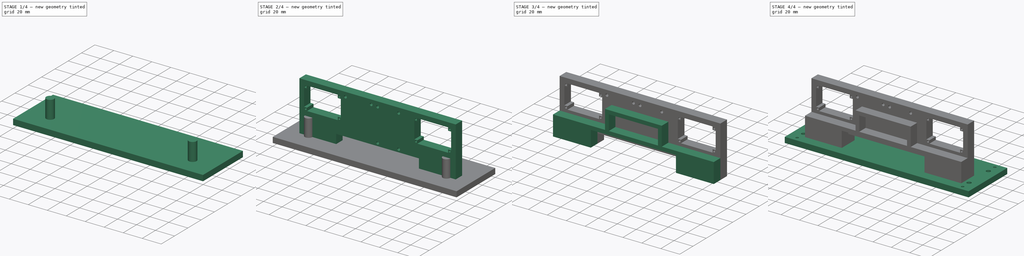
[diagram: build sequence overview — one tinted view per stage of 4, left to right]
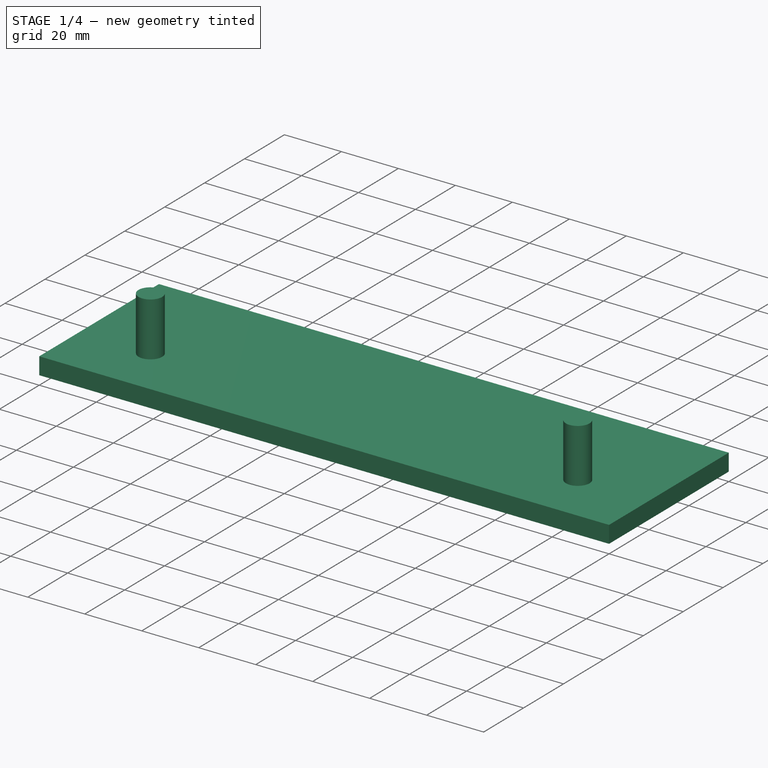
[diagram: stage 1 of 4 — iso view after this stage's code; geometry added in this stage tinted green]
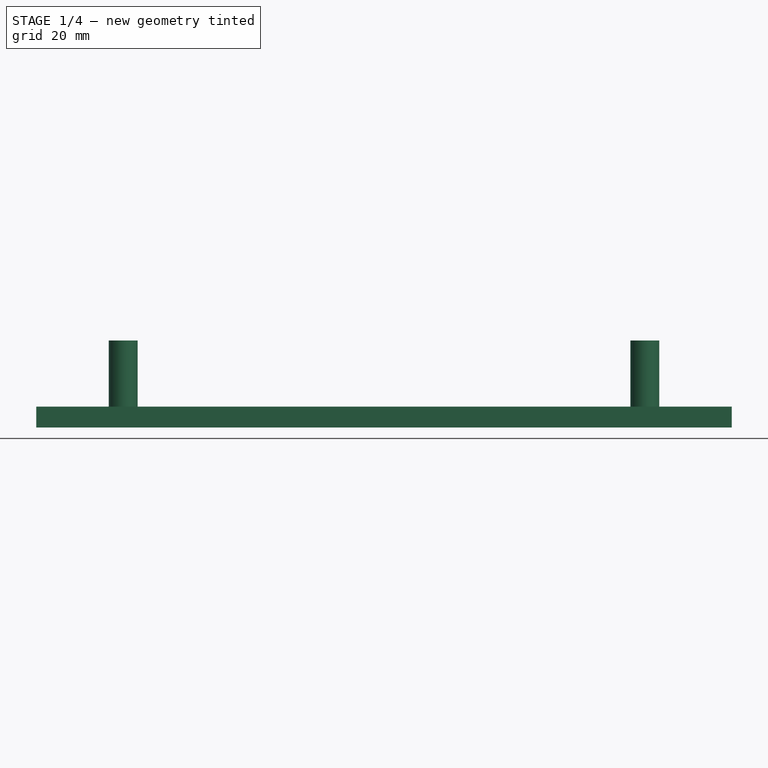
[diagram: stage 1 of 4 — front view after this stage's code; geometry added in this stage tinted green]
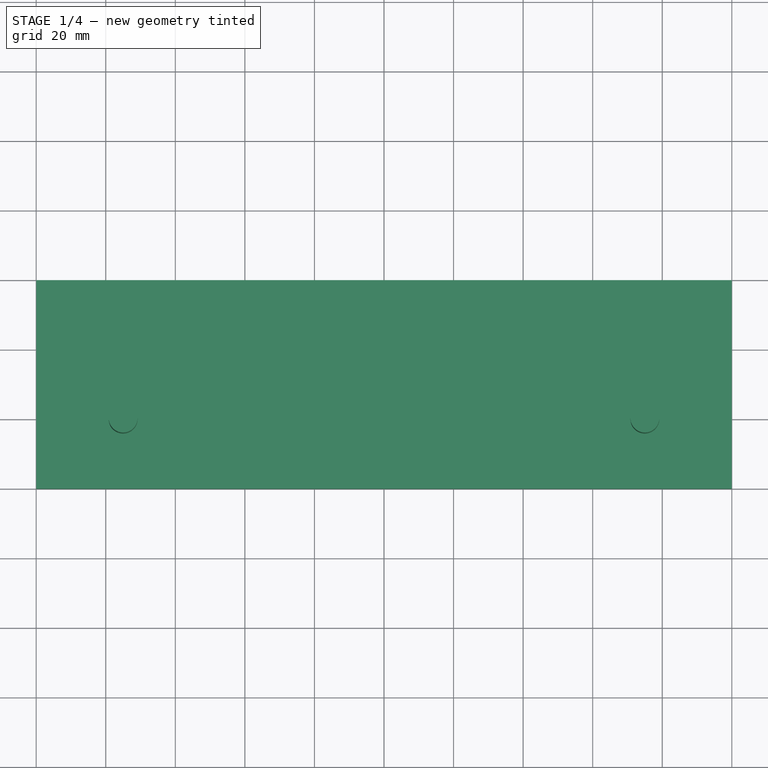
[diagram: stage 1 of 4 — top view after this stage's code; geometry added in this stage tinted green]
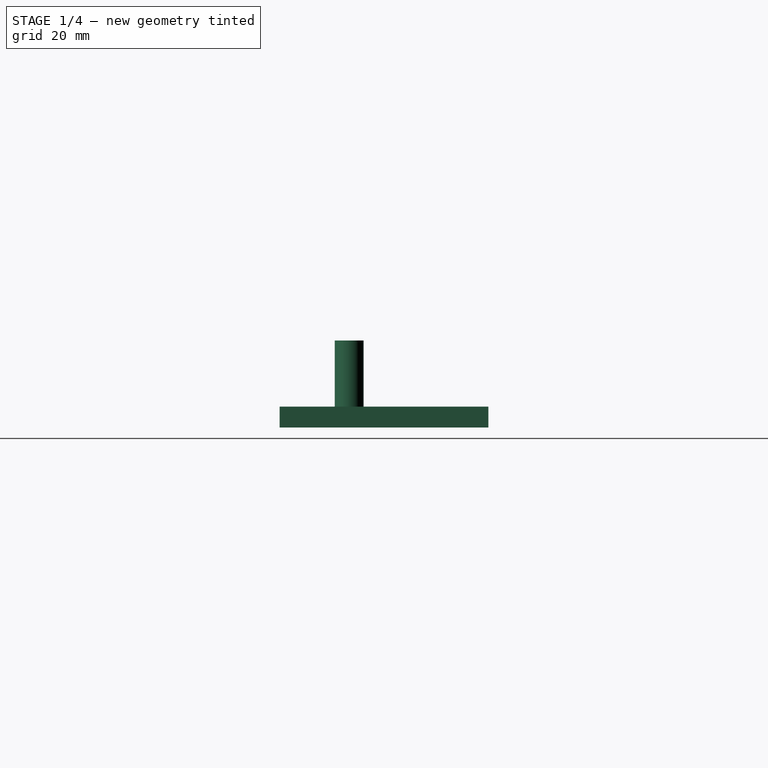
[diagram: stage 1 of 4 — right view after this stage's code; geometry added in this stage tinted green]
FCSTD DOCUMENT  (FreeCAD 0.15R4606 (Git))
Label: sensor_head
License: All rights reserved
LicenseURL: http://en.wikipedia.org/wiki/All_rights_reserved
objects: Sketcher::SketchObject×7, PartDesign::Pad×5, PartDesign::Pocket×2, Part::Cut×2
note: 23 computed .brp shape members not serialized (recipe doc carries the construction recipe); baked Part::Feature solids carry a one-line shape summary decoded from their .brp

FEATURE [Sketcher::SketchObject] Sketch005
  sketch-geometry (4):
    g0: LineSegment StartX=0 StartY=60 StartZ=0 EndX=200 EndY=60 EndZ=0
    g1: LineSegment StartX=200 StartY=60 StartZ=0 EndX=200 EndY=0 EndZ=0
    g2: LineSegment StartX=200 StartY=0 StartZ=0 EndX=0 EndY=0 EndZ=0
    g3: LineSegment StartX=0 StartY=0 StartZ=0 EndX=0 EndY=60 EndZ=0
  constraints (11):
    c: Coincident(g0,g1)
    c: Coincident(g1,g2)
    c: Coincident(g2,g3)
    c: Coincident(g3,g0)
    c: Horizontal(g0)
    c: Horizontal(g2)
    c: Vertical(g1)
    c: Vertical(g3)
    c: Coincident(g2,g-1)
    c: Distance(g3) = 60
    c: Distance(g0) = 200
FEATURE [PartDesign::Pad] Pad003  label="Remove Base From Tower"
  Length = 6
  Length2 = 100
  Sketch = -> Sketch005
  Type = 0
FEATURE [Sketcher::SketchObject] Sketch006
  sketch-geometry (2):
    g0: Circle CenterX=25 CenterY=20 CenterZ=0 NormalX=0 NormalY=0 NormalZ=1 Radius=4.15
    g1: Circle CenterX=175 CenterY=20 CenterZ=0 NormalX=0 NormalY=0 NormalZ=1 Radius=4.15
  constraints (6):
    c: Radius(g0) = 4.15
    c: Equal(g0,g1)
    c: DistanceY(g0,g1) = 0
    c: DistanceY(g-1,g0) = 20
    c: DistanceX(g-1,g0) = 25
    c: Distance(g0,g1) = 150
FEATURE [PartDesign::Pad] Pad004  label="Sensor Bottom Mount Holes"
  Length = 25
  Length2 = 100
  Sketch = -> Sketch006
  Type = 0
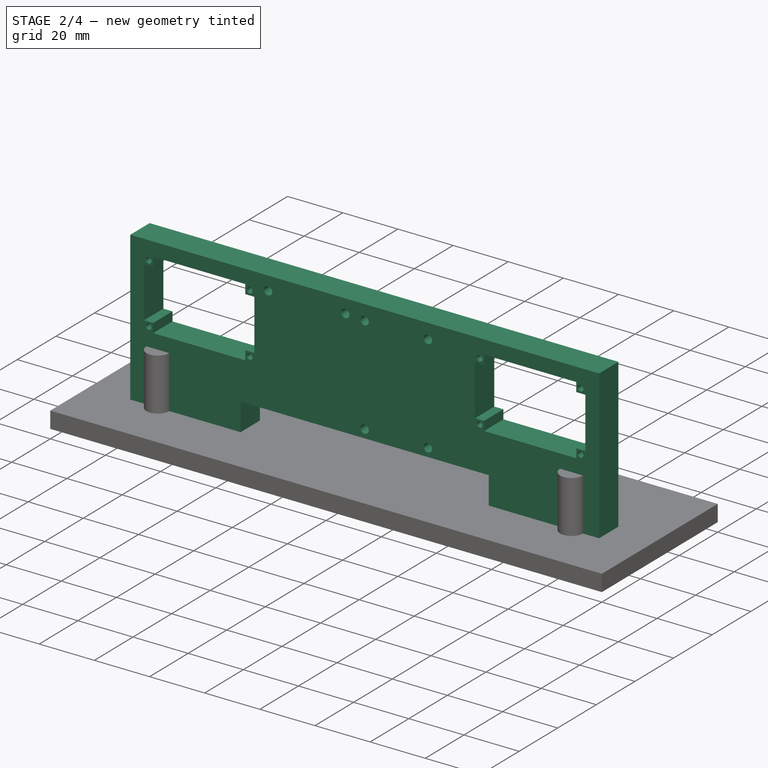
[diagram: stage 2 of 4 — iso view after this stage's code; geometry added in this stage tinted green]
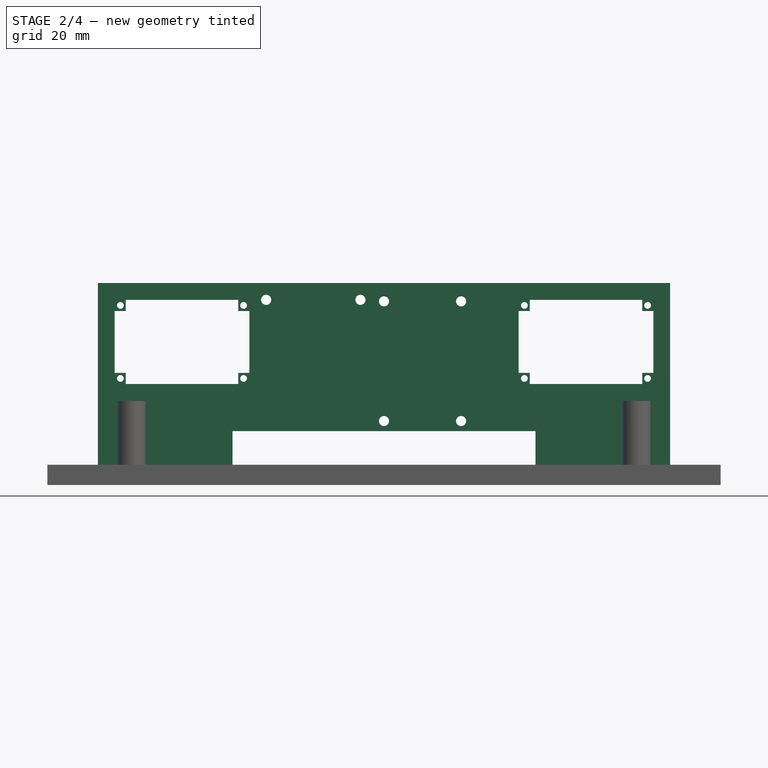
[diagram: stage 2 of 4 — front view after this stage's code; geometry added in this stage tinted green]
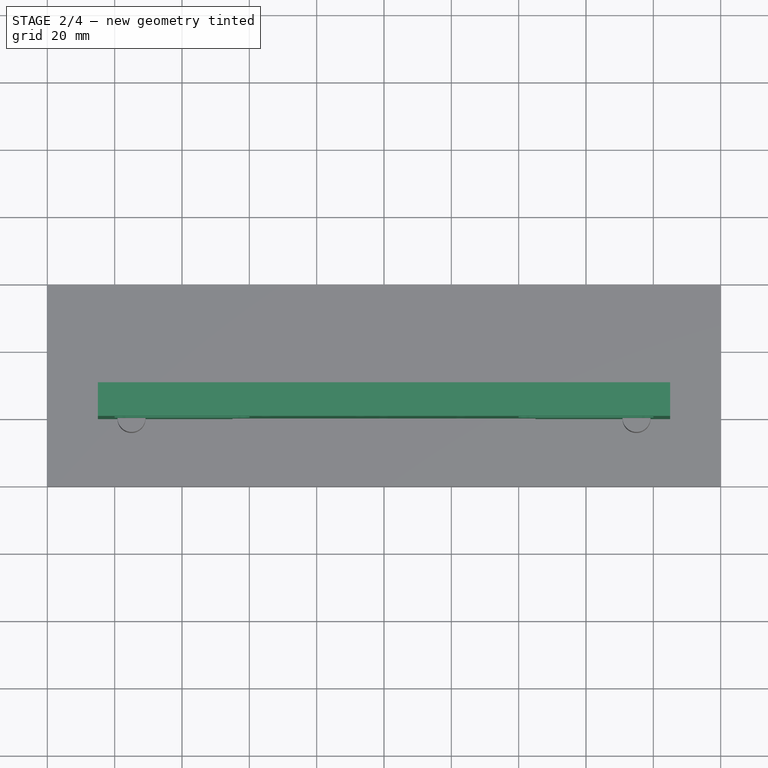
[diagram: stage 2 of 4 — top view after this stage's code; geometry added in this stage tinted green]
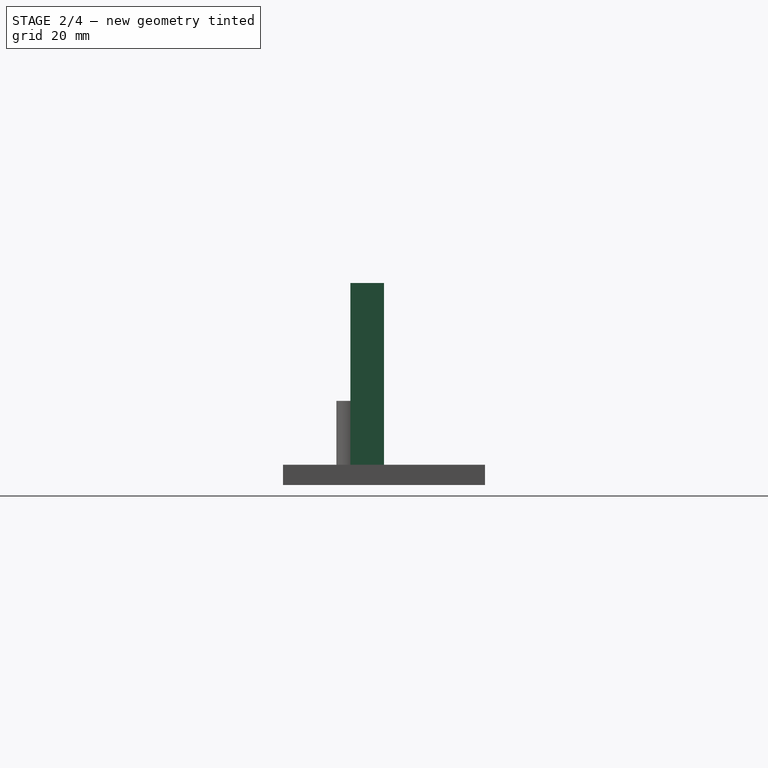
[diagram: stage 2 of 4 — right view after this stage's code; geometry added in this stage tinted green]
FEATURE [Sketcher::SketchObject] Sketch001  label="Tower Sketch"
  sketch-geometry (4):
    g0: LineSegment StartX=15 StartY=30 StartZ=0 EndX=185 EndY=30 EndZ=0
    g1: LineSegment StartX=185 StartY=30 StartZ=0 EndX=185 EndY=20 EndZ=0
    g2: LineSegment StartX=185 StartY=20 StartZ=0 EndX=15 EndY=20 EndZ=0
    g3: LineSegment StartX=15 StartY=20 StartZ=0 EndX=15 EndY=30 EndZ=0
  constraints (12):
    c: Horizontal(g0)
    c: Coincident(g0,g1)
    c: Vertical(g1)
    c: Coincident(g1,g2)
    c: Horizontal(g2)
    c: Coincident(g2,g3)
    c: Coincident(g3,g0)
    c: Vertical(g3)
    c: Distance(g1) = 10
    c: Distance(g0) = 170
    c: DistanceX(g-1,g2) = 15
    c: DistanceY(g-1,g2) = 20
FEATURE [PartDesign::Pad] Pad001  label="Tower"
  Length = 60
  Length2 = 100
  Sketch = -> Sketch001
  Type = 0
FEATURE [Sketcher::SketchObject] Sketch002  label="Sensor Mount Holes Sketch"
  Placement = pos=(0,20,0) rot=(1,0,0;1.5708rad)
  Support = -> Pad001 [Face3]
  sketch-geometry (54):
    g0: LineSegment StartX=20 StartY=51.7 StartZ=0 EndX=20 EndY=33.3 EndZ=0
    g1: LineSegment StartX=20 StartY=33.3 StartZ=0 EndX=23.3 EndY=33.3 EndZ=0
    g2: LineSegment StartX=23.3 StartY=33.3 StartZ=0 EndX=23.3 EndY=30 EndZ=0
    g3: LineSegment StartX=23.3 StartY=30 StartZ=0 EndX=56.7 EndY=30 EndZ=0
    g4: LineSegment StartX=56.7 StartY=30 StartZ=0 EndX=56.7 EndY=33.3 EndZ=0
    g5: LineSegment StartX=56.7 StartY=33.3 StartZ=0 EndX=60 EndY=33.3 EndZ=0
    g6: LineSegment StartX=60 StartY=33.3 StartZ=0 EndX=60 EndY=51.7 EndZ=0
    g7: LineSegment StartX=60 StartY=51.7 StartZ=0 EndX=56.7 EndY=51.7 EndZ=0
    g8: LineSegment StartX=56.7 StartY=51.7 StartZ=0 EndX=56.7 EndY=55 EndZ=0
    g9: LineSegment StartX=56.7 StartY=55 StartZ=0 EndX=23.3 EndY=55 EndZ=0
    g10: LineSegment StartX=23.3 StartY=51.7 StartZ=0 EndX=20 EndY=51.7 EndZ=0
    g11: LineSegment StartX=23.3 StartY=55 StartZ=0 EndX=23.3 EndY=51.7 EndZ=0
    g12: Circle CenterX=21.7 CenterY=53.35 CenterZ=0 NormalX=0 NormalY=0 NormalZ=1 Radius=1
    g13: Circle CenterX=58.3 CenterY=53.35 CenterZ=0 NormalX=0 NormalY=0 NormalZ=1 Radius=1
    g14: Circle CenterX=21.7 CenterY=31.65 CenterZ=0 NormalX=0 NormalY=0 NormalZ=1 Radius=1
    g15: Circle CenterX=58.3 CenterY=31.65 CenterZ=0 NormalX=0 NormalY=0 NormalZ=1 Radius=1
    g16: LineSegment [constr] StartX=58.3 StartY=53.35 StartZ=0 EndX=21.7 EndY=53.35 EndZ=0
    g17: LineSegment [constr] StartX=21.7 StartY=53.35 StartZ=0 EndX=21.7 EndY=31.65 EndZ=0
    g18: LineSegment [constr] StartX=21.7 StartY=31.65 StartZ=0 EndX=58.3 EndY=31.65 EndZ=0
    g19: LineSegment [constr] StartX=58.3 StartY=31.65 StartZ=0 EndX=58.3 EndY=53.35 EndZ=0
    g20: LineSegment StartX=55 StartY=16 StartZ=0 EndX=145 EndY=16 EndZ=0
    g21: LineSegment StartX=145 StartY=16 StartZ=0 EndX=145 EndY=6 EndZ=0
    g22: LineSegment StartX=145 StartY=6 StartZ=0 EndX=55 EndY=6 EndZ=0
    g23: LineSegment StartX=55 StartY=6 StartZ=0 EndX=55 EndY=16 EndZ=0
    g24: LineSegment [constr] StartX=100 StartY=54.55 StartZ=0 EndX=122.9 EndY=54.55 EndZ=0
    g25: LineSegment [constr] StartX=122.9 StartY=54.55 StartZ=0 EndX=122.9 EndY=19 EndZ=0
    g26: LineSegment [constr] StartX=122.9 StartY=19 StartZ=0 EndX=100 EndY=19 EndZ=0
    g27: LineSegment [constr] StartX=100 StartY=19 StartZ=0 EndX=100 EndY=54.55 EndZ=0
    g28: Circle CenterX=100 CenterY=54.55 CenterZ=0 NormalX=0 NormalY=0 NormalZ=1 Radius=1.5
    g29: Circle CenterX=122.9 CenterY=54.55 CenterZ=0 NormalX=0 NormalY=0 NormalZ=1 Radius=1.5
    g30: Circle CenterX=100 CenterY=19 CenterZ=0 NormalX=0 NormalY=0 NormalZ=1 Radius=1.5
    g31: Circle CenterX=122.9 CenterY=19 CenterZ=0 NormalX=0 NormalY=0 NormalZ=1 Radius=1.5
    g32: LineSegment StartX=140 StartY=51.7 StartZ=0 EndX=143.3 EndY=51.7 EndZ=0
    g33: LineSegment StartX=143.3 StartY=51.7 StartZ=0 EndX=143.3 EndY=55 EndZ=0
    g34: LineSegment StartX=143.3 StartY=55 StartZ=0 EndX=176.7 EndY=55 EndZ=0
    g35: LineSegment StartX=176.7 StartY=55 StartZ=0 EndX=176.7 EndY=51.7 EndZ=0
    g36: LineSegment StartX=176.7 StartY=51.7 StartZ=0 EndX=180 EndY=51.7 EndZ=0
    g37: LineSegment StartX=180 StartY=51.7 StartZ=0 EndX=180 EndY=33.3 EndZ=0
    g38: LineSegment StartX=180 StartY=33.3 StartZ=0 EndX=176.7 EndY=33.3 EndZ=0
    g39: LineSegment StartX=176.7 StartY=33.3 StartZ=0 EndX=176.7 EndY=30 EndZ=0
    g40: LineSegment StartX=176.7 StartY=30 StartZ=0 EndX=143.3 EndY=30 EndZ=0
    g41: LineSegment StartX=143.3 StartY=30 StartZ=0 EndX=143.3 EndY=33.3 EndZ=0
    g42: LineSegment StartX=143.3 StartY=33.3 StartZ=0 EndX=140 EndY=33.3 EndZ=0
    g43: LineSegment StartX=140 StartY=33.3 StartZ=0 EndX=140 EndY=51.7 EndZ=0
    g44: LineSegment [constr] StartX=141.7 StartY=53.35 StartZ=0 EndX=178.3 EndY=53.35 EndZ=0
    g45: LineSegment [constr] StartX=178.3 StartY=53.35 StartZ=0 EndX=178.3 EndY=31.65 EndZ=0
    g46: LineSegment [constr] StartX=178.3 StartY=31.65 StartZ=0 EndX=141.7 EndY=31.65 EndZ=0
    g47: LineSegment [constr] StartX=141.7 StartY=31.65 StartZ=0 EndX=141.7 EndY=53.35 EndZ=0
    g48: Circle CenterX=141.7 CenterY=53.35 CenterZ=0 NormalX=0 NormalY=0 NormalZ=1 Radius=1
    g49: Circle CenterX=141.7 CenterY=31.65 CenterZ=0 NormalX=0 NormalY=0 NormalZ=1 Radius=1
    g50: Circle CenterX=178.3 CenterY=31.65 CenterZ=0 NormalX=0 NormalY=0 NormalZ=1 Radius=1
    g51: Circle CenterX=178.3 CenterY=53.35 CenterZ=0 NormalX=0 NormalY=0 NormalZ=1 Radius=1
    g52: Circle CenterX=65 CenterY=55 CenterZ=0 NormalX=0 NormalY=0 NormalZ=1 Radius=1.5
    g53: Circle CenterX=93 CenterY=55 CenterZ=0 NormalX=0 NormalY=0 NormalZ=1 Radius=1.5
  constraints (150):
    c: Vertical(g0)
    c: Coincident(g0,g1)
    c: Coincident(g1,g2)
    c: Vertical(g2)
    c: Coincident(g2,g3)
    c: Horizontal(g3)
    c: Coincident(g3,g4)
    c: Vertical(g4)
    c: Coincident(g4,g5)
    c: Horizontal(g5)
    c: Coincident(g5,g6)
    c: Vertical(g6)
    c: Coincident(g6,g7)
    c: Coincident(g7,g8)
    c: Coincident(g8,g9)
    c: Horizontal(g9)
    c: Coincident(g10,g0)
    c: Horizontal(g10)
    c: Vertical(g8)
    c: Horizontal(g7)
    c: DistanceX(g0,g5) = 40
    c: DistanceX(g0,g10) = 3.3
    c: Horizontal(g1)
    c: Coincident(g9,g11)
    c: Coincident(g10,g11)
    c: Vertical(g11)
    c: Equal(g10,g11)
    c: Equal(g11,g8)
    c: Equal(g8,g7)
    c: Equal(g7,g5)
    c: Equal(g5,g4)
    c: Equal(g4,g2)
    c: Equal(g2,g1)
    c: DistanceY(g2,g9) = 25
    c: Coincident(g16,g17)
    c: Coincident(g17,g18)
    c: Coincident(g18,g19)
    c: Coincident(g19,g16)
    c: Horizontal(g16)
    c: Horizontal(g18)
    c: Vertical(g17)
    c: Vertical(g19)
    c: Coincident(g13,g16)
    c: Radius(g12) = 1
    c: Equal(g12,g13)
    c: Equal(g13,g15)
    c: Equal(g15,g14)
    c: Coincident(g12,g16)
    c: Coincident(g14,g17)
    c: Distance(g17) = 21.7
    c: Distance(g16) = 36.6
    c: Coincident(g15,g18)
    c: DistanceX(g0,g12) = 1.7
    c: DistanceY(g9,g12) = -1.65
    c: DistanceX(g-1,g0) = 20
    c: DistanceY(g-1,g2) = 30
    c: Coincident(g20,g21)
    c: Coincident(g21,g22)
    c: Coincident(g22,g23)
    c: Coincident(g23,g20)
    c: Horizontal(g20)
    c: Horizontal(g22)
    c: Vertical(g21)
    c: Vertical(g23)
    c: DistanceY(g-1,g22) = 6
    c: Distance(g21) = 10
    c: Distance(g22) = 90
    c: DistanceX(g-1,g22) = 55
    c: Coincident(g24,g25)
    c: Coincident(g25,g26)
    c: Coincident(g26,g27)
    c: Coincident(g27,g24)
    c: Horizontal(g24)
    c: Horizontal(g26)
    c: Vertical(g25)
    c: Vertical(g27)
    c: Distance(g24) = 22.9
    c: Distance(g25) = 35.55
    c: DistanceY(g-1,g26) = 19
    c: Radius(g28) = 1.5
    c: Equal(g28,g29)
    c: Equal(g29,g30)
    c: Equal(g30,g31)
    c: Coincident(g28,g24)
    c: Coincident(g29,g24)
    c: Coincident(g30,g26)
    c: Coincident(g31,g25)
    c: DistanceX(g-1,g26) = 100
    c: Horizontal(g32)
    c: Coincident(g32,g33)
    c: Vertical(g33)
    c: Coincident(g33,g34)
    c: Horizontal(g34)
    c: Coincident(g34,g35)
    c: Coincident(g35,g36)
    c: Coincident(g36,g37)
    c: Vertical(g37)
    c: Coincident(g37,g38)
    c: Coincident(g38,g39)
    c: Vertical(g39)
    c: Coincident(g39,g40)
    c: Horizontal(g40)
    c: Coincident(g40,g41)
    c: Coincident(g41,g42)
    c: Coincident(g42,g43)
    c: Coincident(g32,g43)
    c: Vertical(g43)
    c: Vertical(g41)
    c: Horizontal(g42)
    c: Horizontal(g36)
    c: Horizontal(g38)
    c: Vertical(g35)
    c: Equal(g42,g32)
    c: Equal(g32,g33)
    c: Equal(g33,g35)
    c: Equal(g35,g36)
    c: Equal(g36,g38)
    c: Equal(g38,g39)
    c: Equal(g39,g41)
    c: Distance(g32) = 3.3
    c: DistanceY(g-1,g40) = 30
    c: DistanceX(g32,g36) = 40
    c: DistanceY(g34,g39) = -25
    c: DistanceX(g-1,g37) = 180
    c: Coincident(g44,g45)
    c: Coincident(g45,g46)
    c: Coincident(g46,g47)
    c: Coincident(g47,g44)
    c: Horizontal(g44)
    c: Horizontal(g46)
    c: Vertical(g45)
    c: Vertical(g47)
    c: Distance(g44) = 36.6
    c: Distance(g45) = 21.7
    c: DistanceY(g33,g44) = -1.65
    c: DistanceX(g32,g44) = 1.7
    c: Radius(g48) = 1
    c: Equal(g48,g50)
    c: Equal(g50,g51)
    c: Equal(g51,g49)
    c: Coincident(g48,g44)
    c: Coincident(g49,g46)
    c: Coincident(g51,g44)
    c: Coincident(g50,g45)
    c: Radius(g52) = 1.5
    c: Equal(g52,g53)
    c: DistanceX(g52,g53) = 28
    c: DistanceY(g52,g53) = 0
    c: DistanceY(g-1,g52) = 55
    c: DistanceX(g-1,g52) = 65
FEATURE [PartDesign::Pocket] Pocket  label="Sensor Mount Holes"
  Length = 50
  Sketch = -> Sketch002
  Type = 0
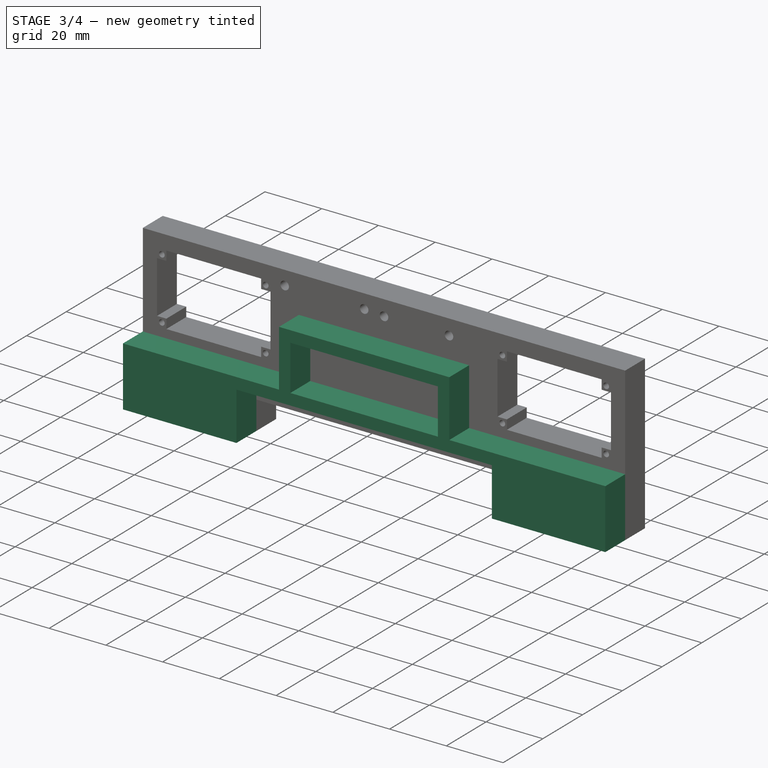
[diagram: stage 3 of 4 — iso view after this stage's code; geometry added in this stage tinted green]
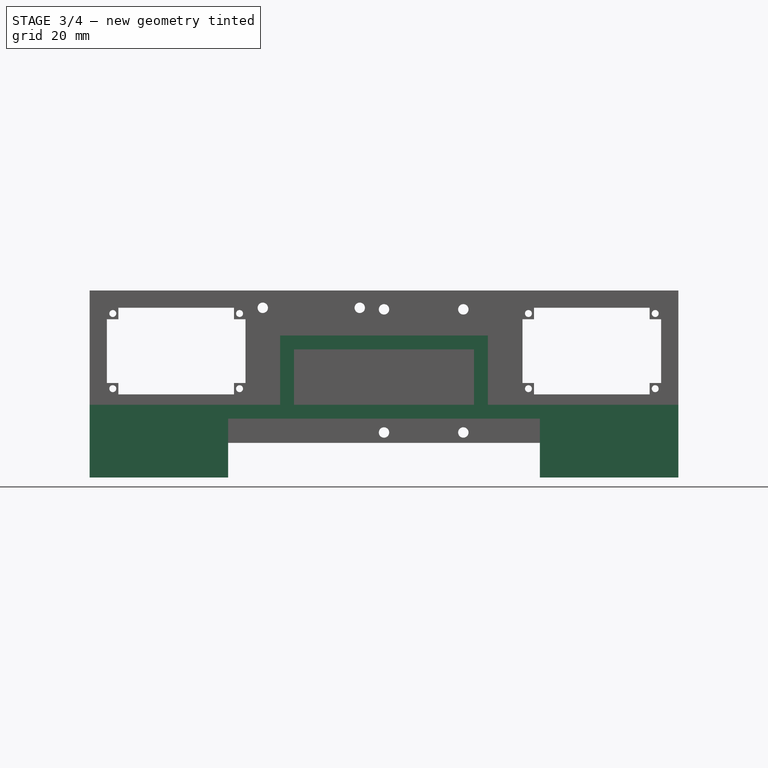
[diagram: stage 3 of 4 — front view after this stage's code; geometry added in this stage tinted green]
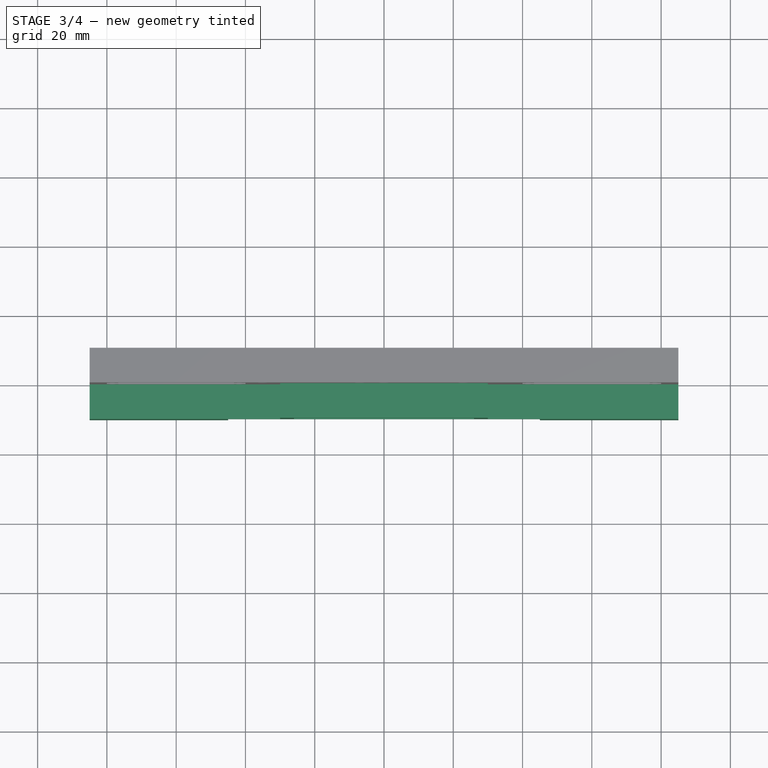
[diagram: stage 3 of 4 — top view after this stage's code; geometry added in this stage tinted green]
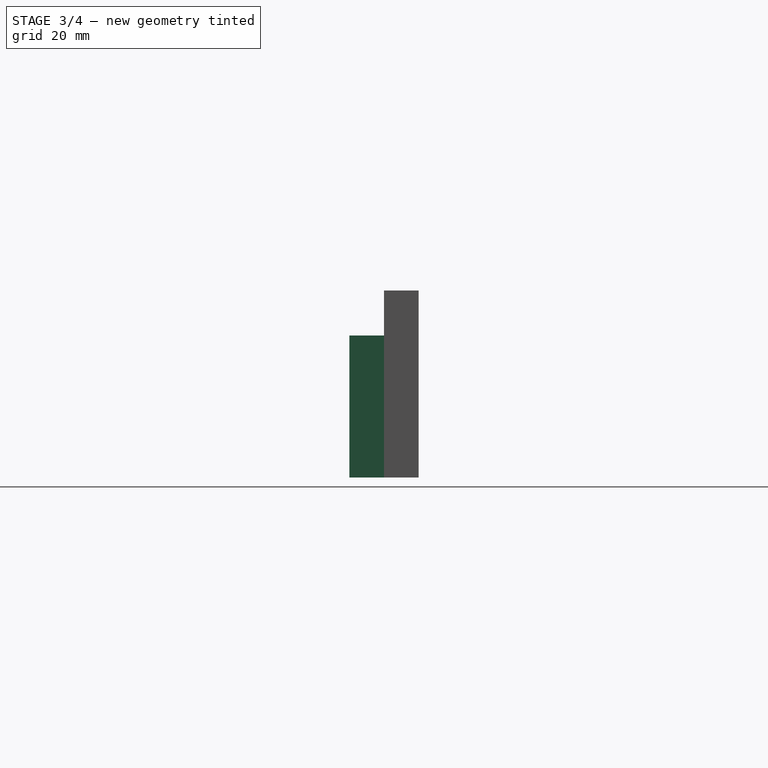
[diagram: stage 3 of 4 — right view after this stage's code; geometry added in this stage tinted green]
FEATURE [Sketcher::SketchObject] Sketch004  label="Reinforcement Sketch"
  Placement = pos=(0,20,0) rot=(1,0,0;1.5708rad)
  Support = -> Pocket [Face48]
  sketch-geometry (16):
    g0: LineSegment StartX=15 StartY=27 StartZ=0 EndX=15 EndY=0 EndZ=0
    g1: LineSegment StartX=70 StartY=27 StartZ=0 EndX=15 EndY=27 EndZ=0
    g2: LineSegment StartX=74 StartY=43 StartZ=0 EndX=126 EndY=43 EndZ=0
    g3: LineSegment StartX=126 StartY=43 StartZ=0 EndX=126 EndY=27 EndZ=0
    g4: LineSegment StartX=126 StartY=27 StartZ=0 EndX=74 EndY=27 EndZ=0
    g5: LineSegment StartX=74 StartY=27 StartZ=0 EndX=74 EndY=43 EndZ=0
    g6: LineSegment StartX=70 StartY=27 StartZ=0 EndX=70 EndY=47 EndZ=0
    g7: LineSegment StartX=70 StartY=47 StartZ=0 EndX=130 EndY=47 EndZ=0
    g8: LineSegment StartX=130 StartY=47 StartZ=0 EndX=130 EndY=27 EndZ=0
    g9: LineSegment StartX=130 StartY=27 StartZ=0 EndX=185 EndY=27 EndZ=0
    g10: LineSegment StartX=185 StartY=27 StartZ=0 EndX=185 EndY=0 EndZ=0
    g11: LineSegment StartX=15 StartY=0 StartZ=0 EndX=55 EndY=0 EndZ=0
    g12: LineSegment StartX=55 StartY=0 StartZ=0 EndX=55 EndY=23 EndZ=0
    g13: LineSegment StartX=55 StartY=23 StartZ=0 EndX=145 EndY=23 EndZ=0
    g14: LineSegment StartX=145 StartY=23 StartZ=0 EndX=145 EndY=0 EndZ=0
    g15: LineSegment StartX=145 StartY=0 StartZ=0 EndX=185 EndY=0 EndZ=0
  constraints (48):
    c: Vertical(g0)
    c: Horizontal(g1)
    c: Coincident(g0,g1)
    c: Coincident(g2,g3)
    c: Coincident(g3,g4)
    c: Coincident(g4,g5)
    c: Coincident(g5,g2)
    c: Horizontal(g2)
    c: Horizontal(g4)
    c: Vertical(g3)
    c: Vertical(g5)
    c: Coincident(g6,g7)
    c: Horizontal(g7)
    c: Coincident(g7,g8)
    c: Coincident(g8,g9)
    c: Horizontal(g9)
    c: Coincident(g9,g10)
    c: Vertical(g10)
    c: Vertical(g6)
    c: Vertical(g8)
    c: Coincident(g1,g6)
    c: DistanceX(g2,g6) = -4
    c: DistanceX(g2,g7) = 4
    c: DistanceY(g2,g7) = 4
    c: DistanceY(g3,g8) = 0
    c: DistanceX(g-1,g0) = 15
    c: Distance(g6) = 20
    c: Distance(g7) = 60
    c: DistanceX(g1,g0) = -55
    c: PointOnObject(g0,g-1)
    c: Horizontal(g11)
    c: Coincident(g11,g12)
    c: Coincident(g12,g13)
    c: Horizontal(g13)
    c: Coincident(g13,g14)
    c: Coincident(g14,g15)
    c: Horizontal(g15)
    c: Coincident(g10,g15)
    c: Vertical(g14)
    c: Vertical(g12)
    c: PointOnObject(g10,g-1)
    c: Coincident(g0,g11)
    c: DistanceY(g1,g4) = 0
    c: Distance(g12) = 23
    c: Distance(g13) = 90
    c: DistanceY(g-1,g0) = 27
    c: Distance(g11) = 40
    c: DistanceX(g10,g0) = -170
FEATURE [PartDesign::Pad] Pad002  label="Reinforcement"
  Length = 10
  Length2 = 100
  Sketch = -> Sketch004
  Type = 0
FEATURE [Part::Cut] Cut
  Base = -> Pad002
  Tool = -> Pad003
FEATURE [Part::Cut] Cut001
  Base = -> Cut
  Tool = -> Pad004
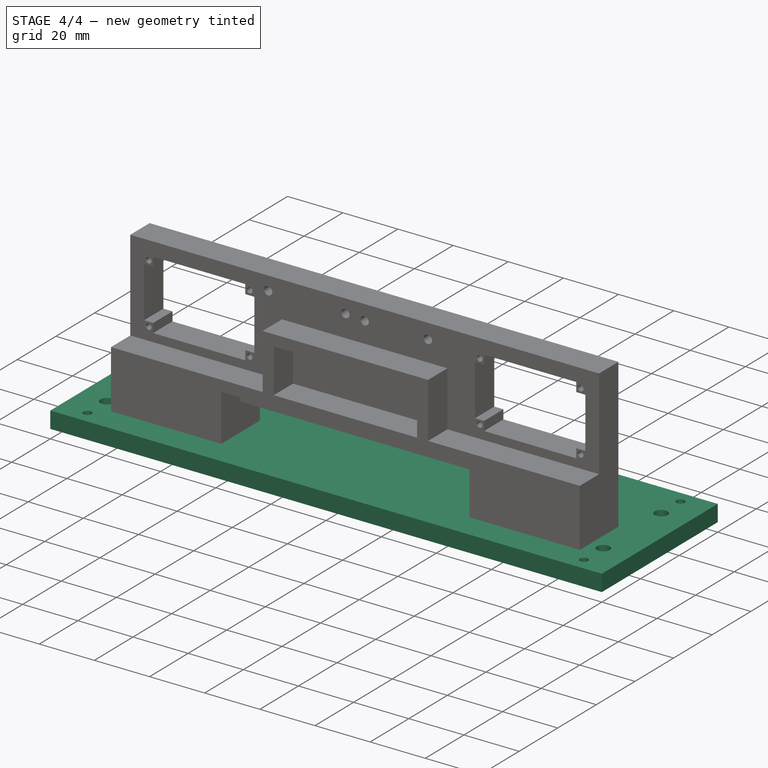
[diagram: stage 4 of 4 — iso view after this stage's code; geometry added in this stage tinted green]
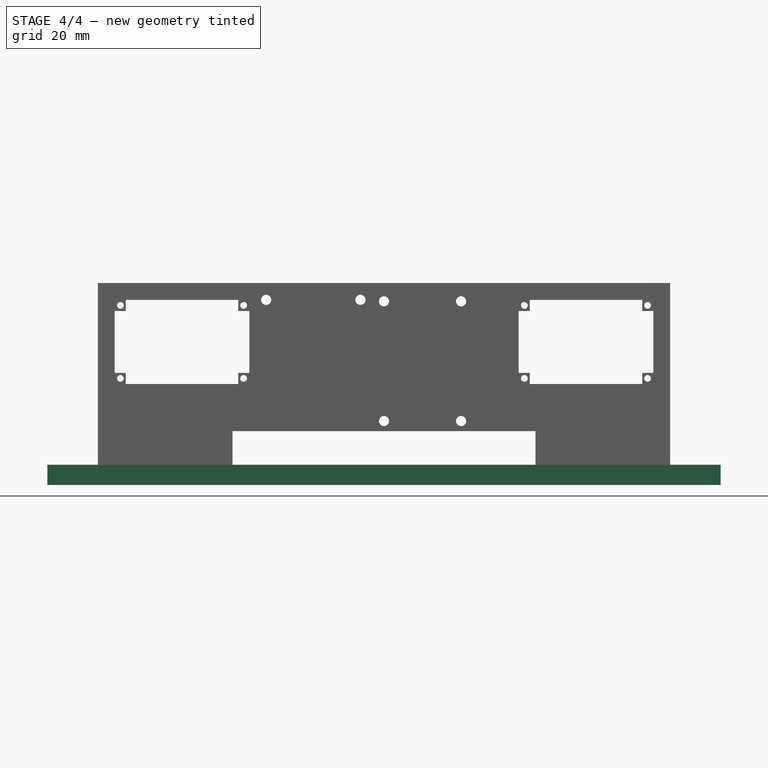
[diagram: stage 4 of 4 — front view after this stage's code; geometry added in this stage tinted green]
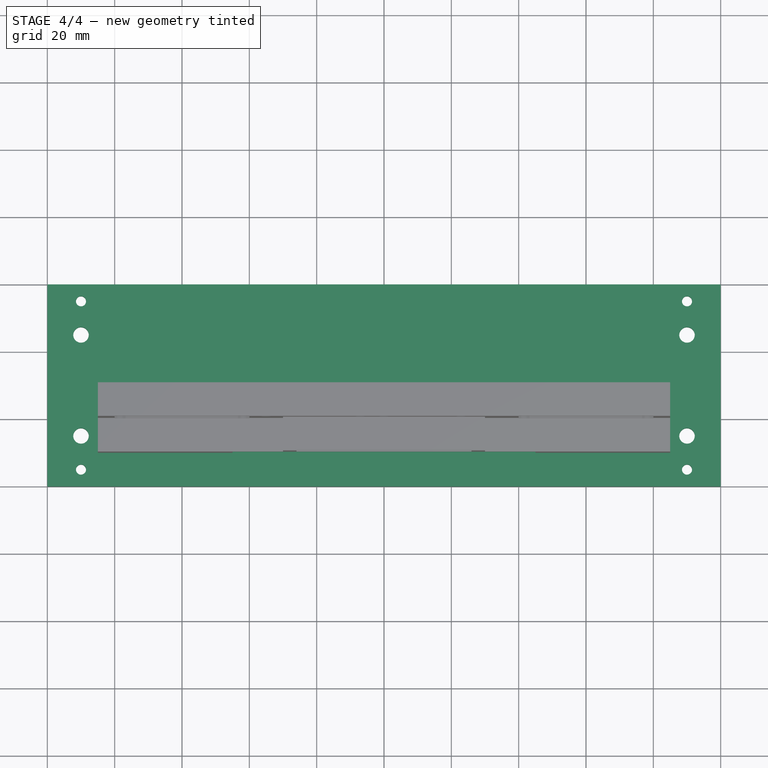
[diagram: stage 4 of 4 — top view after this stage's code; geometry added in this stage tinted green]
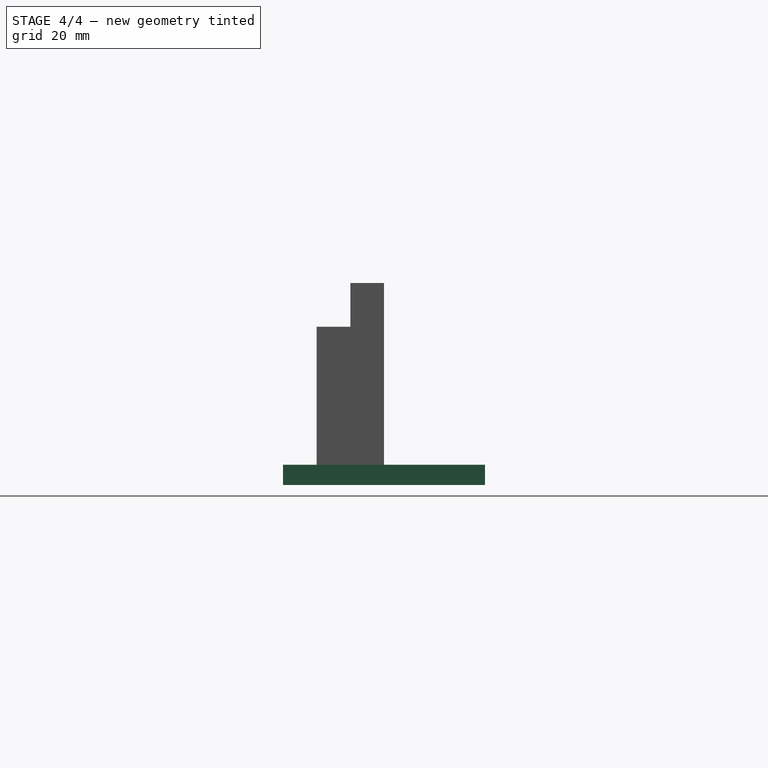
[diagram: stage 4 of 4 — right view after this stage's code; geometry added in this stage tinted green]
FEATURE [Sketcher::SketchObject] Sketch
  sketch-geometry (4):
    g0: LineSegment StartX=0 StartY=60 StartZ=0 EndX=200 EndY=60 EndZ=0
    g1: LineSegment StartX=200 StartY=60 StartZ=0 EndX=200 EndY=0 EndZ=0
    g2: LineSegment StartX=200 StartY=0 StartZ=0 EndX=0 EndY=0 EndZ=0
    g3: LineSegment StartX=0 StartY=0 StartZ=0 EndX=0 EndY=60 EndZ=0
  constraints (11):
    c: Coincident(g0,g1)
    c: Coincident(g1,g2)
    c: Coincident(g2,g3)
    c: Coincident(g3,g0)
    c: Horizontal(g0)
    c: Horizontal(g2)
    c: Vertical(g1)
    c: Vertical(g3)
    c: Coincident(g2,g-1)
    c: Distance(g3) = 60
    c: Distance(g0) = 200
FEATURE [PartDesign::Pad] Pad  label="Base"
  Length = 6
  Length2 = 100
  Sketch = -> Sketch
  Type = 0
FEATURE [Sketcher::SketchObject] Sketch003  label="Base Mount Holes Sketch"
  Placement = pos=(0,0,6) rot=(0,0,1;0rad)
  Support = -> Pad [Face6]
  sketch-geometry (16):
    g0: Circle CenterX=10 CenterY=55 CenterZ=0 NormalX=0 NormalY=0 NormalZ=1 Radius=1.5
    g1: Circle CenterX=190 CenterY=55 CenterZ=0 NormalX=0 NormalY=0 NormalZ=1 Radius=1.5
    g2: Circle CenterX=10 CenterY=5 CenterZ=0 NormalX=0 NormalY=0 NormalZ=1 Radius=1.5
    g3: Circle CenterX=190 CenterY=5 CenterZ=0 NormalX=0 NormalY=0 NormalZ=1 Radius=1.5
    g4: LineSegment [constr] StartX=10 StartY=55 StartZ=0 EndX=190 EndY=55 EndZ=0
    g5: LineSegment [constr] StartX=190 StartY=55 StartZ=0 EndX=190 EndY=5 EndZ=0
    g6: LineSegment [constr] StartX=190 StartY=5 StartZ=0 EndX=10 EndY=5 EndZ=0
    g7: LineSegment [constr] StartX=10 StartY=5 StartZ=0 EndX=10 EndY=55 EndZ=0
    g8: Circle CenterX=10 CenterY=45 CenterZ=0 NormalX=0 NormalY=0 NormalZ=1 Radius=2.3
    g9: Circle CenterX=10 CenterY=15 CenterZ=0 NormalX=0 NormalY=0 NormalZ=1 Radius=2.3
    g10: Circle CenterX=190 CenterY=15 CenterZ=0 NormalX=0 NormalY=0 NormalZ=1 Radius=2.3
    g11: Circle CenterX=190 CenterY=45 CenterZ=0 NormalX=0 NormalY=0 NormalZ=1 Radius=2.3
    g12: LineSegment [constr] StartX=10 StartY=45 StartZ=0 EndX=190 EndY=45 EndZ=0
    g13: LineSegment [constr] StartX=190 StartY=45 StartZ=0 EndX=190 EndY=15 EndZ=0
    g14: LineSegment [constr] StartX=190 StartY=15 StartZ=0 EndX=10 EndY=15 EndZ=0
    g15: LineSegment [constr] StartX=10 StartY=15 StartZ=0 EndX=10 EndY=45 EndZ=0
  constraints (40):
    c: Radius(g0) = 1.5
    c: Equal(g0,g1)
    c: Equal(g1,g3)
    c: Equal(g3,g2)
    c: Coincident(g4,g5)
    c: Coincident(g5,g6)
    c: Coincident(g6,g7)
    c: Coincident(g7,g4)
    c: Horizontal(g4)
    c: Horizontal(g6)
    c: Vertical(g5)
    c: Vertical(g7)
    c: Distance(g4) = 180
    c: Distance(g5) = 50
    c: Coincident(g1,g4)
    c: Coincident(g3,g5)
    c: Coincident(g0,g4)
    c: Coincident(g2,g6)
    c: DistanceX(g-1,g2) = 10
    c: DistanceY(g-1,g2) = 5
    c: Radius(g8) = 2.3
    c: Equal(g10,g8)
    c: Equal(g8,g9)
    c: Equal(g11,g8)
    c: Coincident(g12,g13)
    c: Coincident(g13,g14)
    c: Coincident(g14,g15)
    c: Coincident(g15,g12)
    c: Horizontal(g12)
    c: Horizontal(g14)
    c: Vertical(g13)
    c: Vertical(g15)
    c: Distance(g15) = 30
    c: Distance(g12) = 180
    c: PointOnObject(g12,g5)
    c: Coincident(g8,g12)
    c: Coincident(g9,g14)
    c: Coincident(g11,g12)
    c: Coincident(g10,g13)
    c: DistanceY(g9,g2) = -10
FEATURE [PartDesign::Pocket] Pocket001  label="Base Mount Holes"
  Length = 200
  Sketch = -> Sketch003
  Type = 0
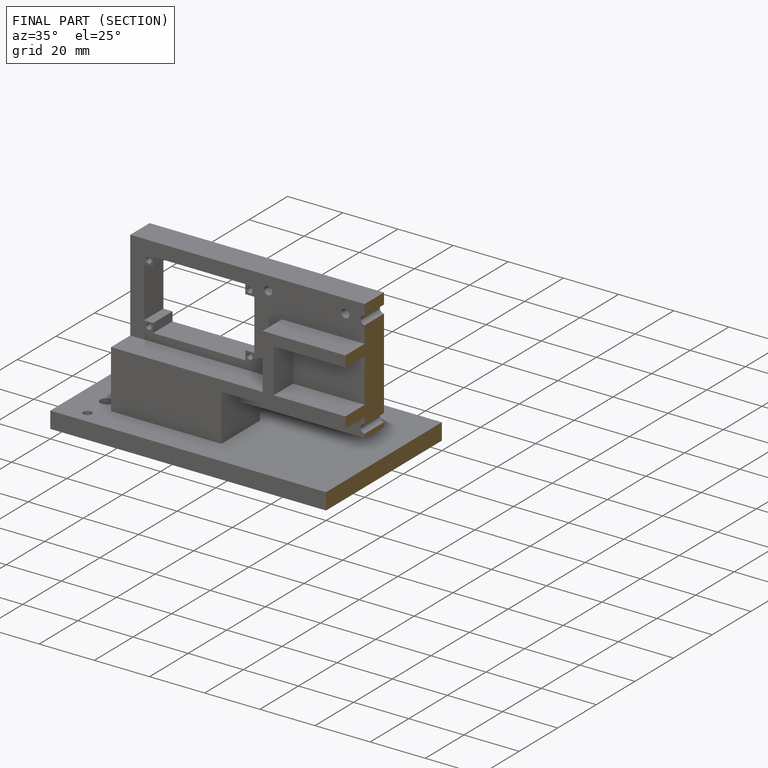
[diagram: finished part — half-section view (interior)]
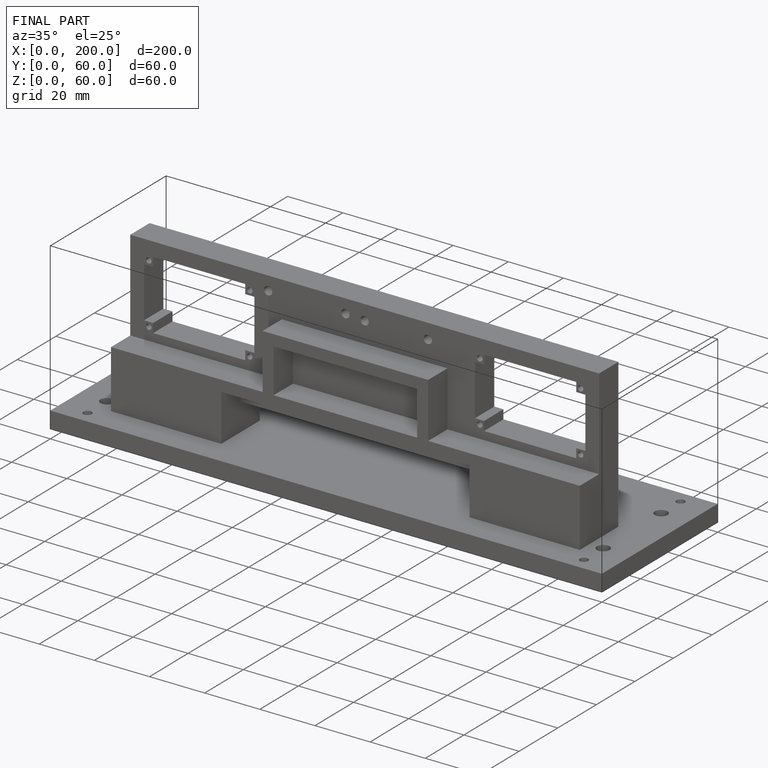
[diagram: finished part — iso view with bounding-box wireframe]
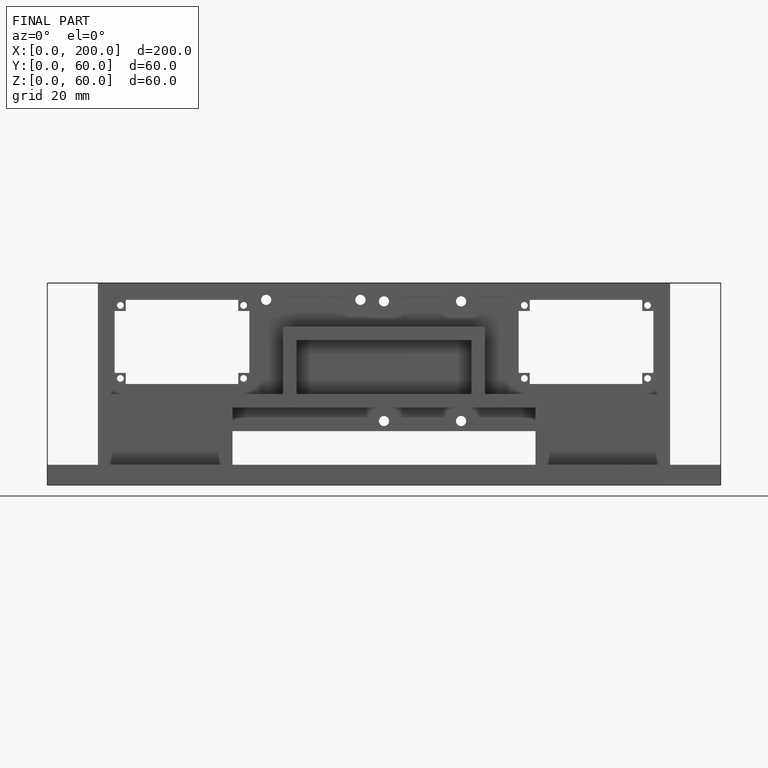
[diagram: finished part — front view with bounding-box wireframe]
